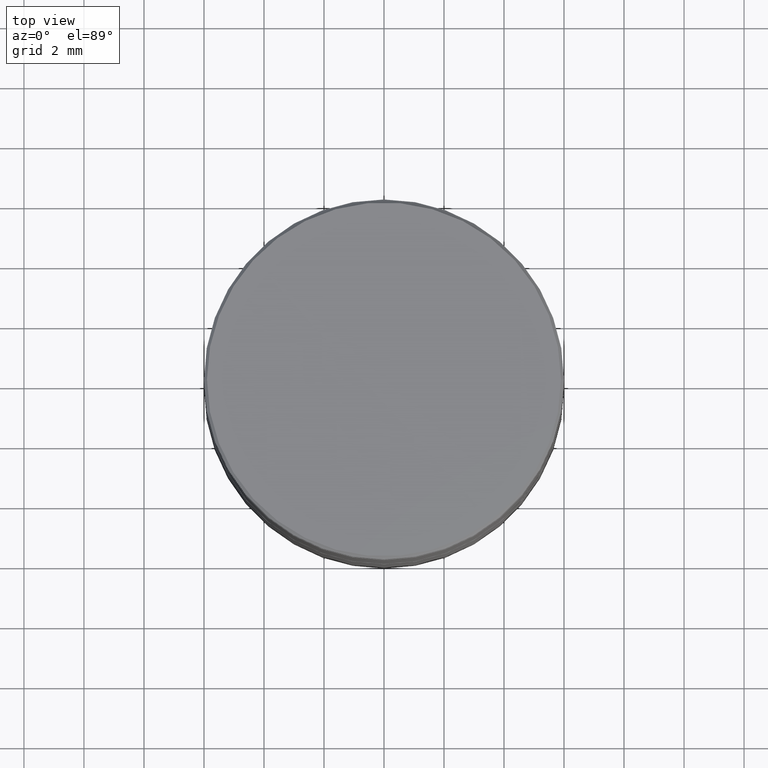
[diagram: clean part render]
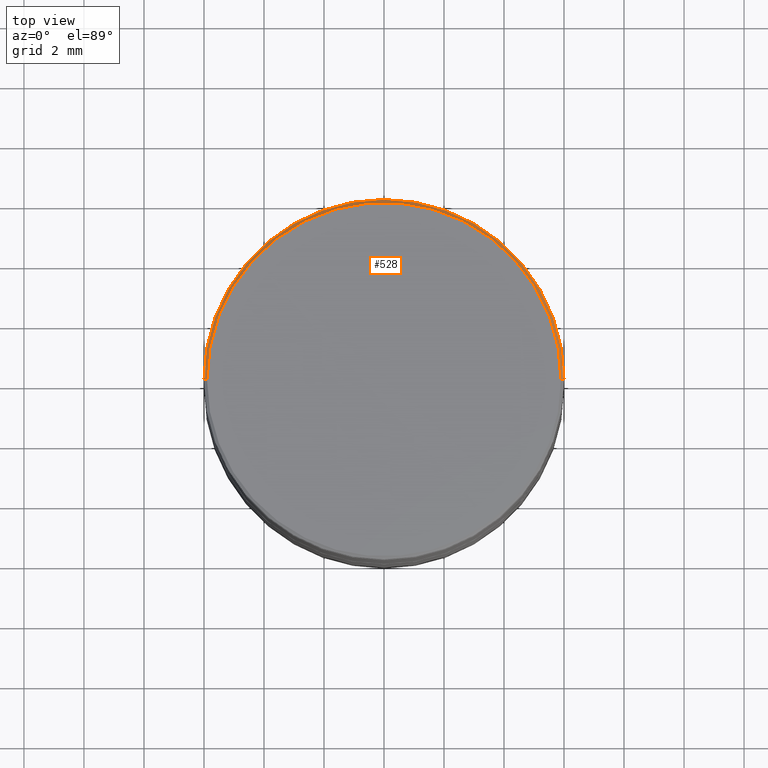
[diagram: same view with one face highlighted and labeled with its STEP entity id]
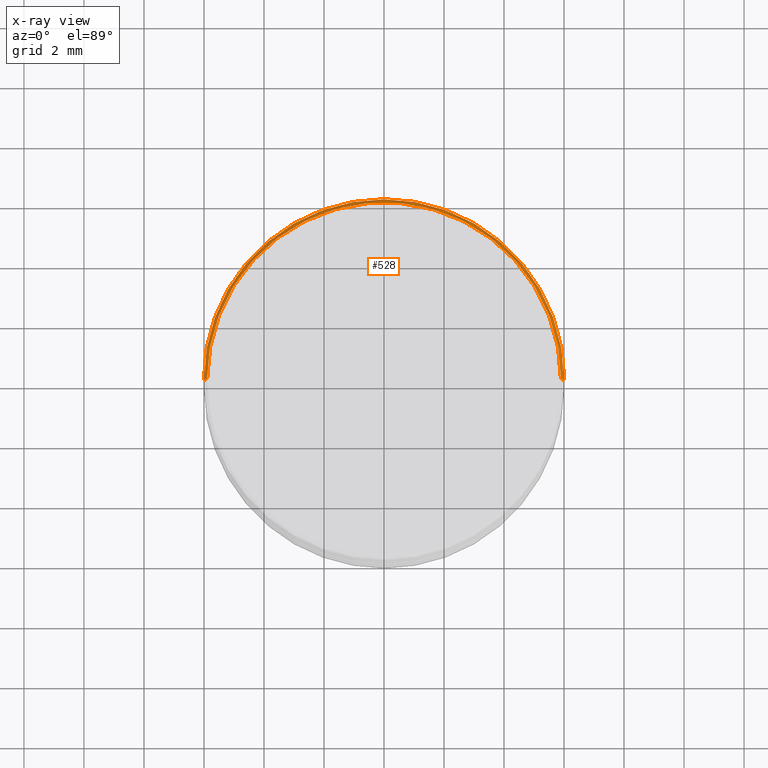
[diagram: x-ray of the same camera — body ghosted, the highlighted face saturated]
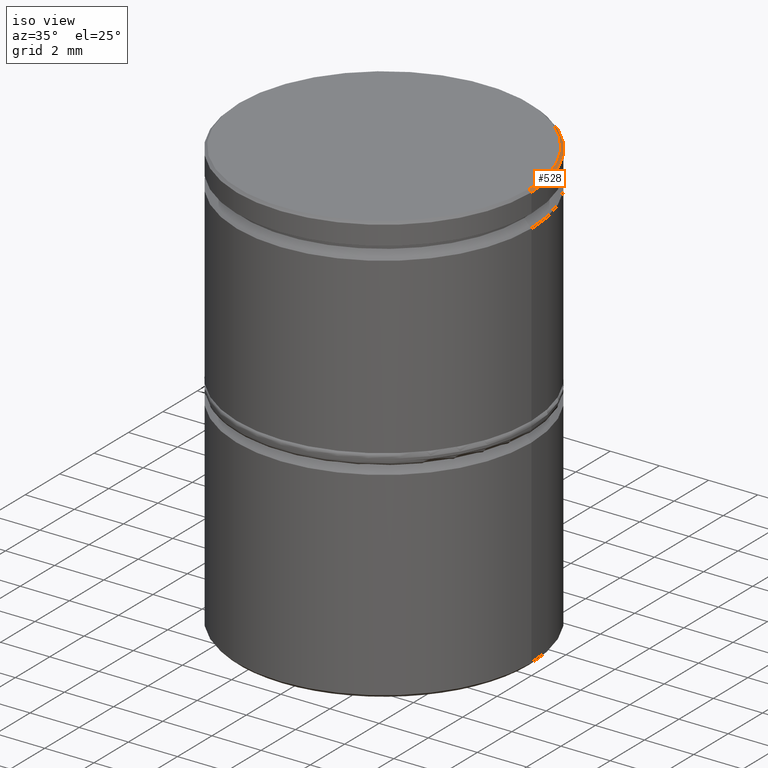
[diagram: same view with one face highlighted and labeled with its STEP entity id]
A machine part, top view. The second image highlights one B-rep face of the part: STEP entity #528.
The next image is the same camera in x-ray: the body ghosted, the highlighted face saturated — about 0% of this face is hidden behind the body in this view.
A second angle (iso view) of the same face is appended — the face is thin or edge-on in the first view.
In plain terms, the highlighted conical surface has half-angle 45 deg.
Its self-contained STEP definition (entity closure, byte-faithful):
#3 = DIRECTION ( 'NONE',  ( -0.7071067811865444641, 0.000000000000000000, -0.7071067811865505703 ) ) ;
#25 = ORIENTED_EDGE ( 'NONE', *, *, #942, .T. ) ;
#42 = EDGE_CURVE ( 'NONE', #913, #546, #564, .T. ) ;
#83 = CONICAL_SURFACE ( 'NONE', #1029, 5.900000000000002132, 0.7853981633974439491 ) ;
#90 = VERTEX_POINT ( 'NONE', #794 ) ;
#101 = DIRECTION ( 'NONE',  ( 0.7071067811865444641, 8.659560562354897113E-17, -0.7071067811865505703 ) ) ;
#138 = DIRECTION ( 'NONE',  ( -1.000000000000000000, 0.000000000000000000, 0.000000000000000000 ) ) ;
#204 = ORIENTED_EDGE ( 'NONE', *, *, #42, .F. ) ;
#236 = EDGE_CURVE ( 'NONE', #90, #679, #733, .T. ) ;
#250 = EDGE_LOOP ( 'NONE', ( #516, #25, #204, #921 ) ) ;
#274 = LINE ( 'NONE', #885, #1030 ) ;
#294 = AXIS2_PLACEMENT_3D ( 'NONE', #463, #689, #923 ) ;
#394 = CARTESIAN_POINT ( 'NONE',  ( 6.000000000000000000, 0.000000000000000000, -0.09999999999999852063 ) ) ;
#463 = CARTESIAN_POINT ( 'NONE',  ( 0.000000000000000000, 0.000000000000000000, -0.09999999999999852063 ) ) ;
#464 = FACE_OUTER_BOUND ( 'NONE', #250, .T. ) ;
#475 = DIRECTION ( 'NONE',  ( 1.000000000000000000, 0.000000000000000000, 0.000000000000000000 ) ) ;
#516 = ORIENTED_EDGE ( 'NONE', *, *, #236, .F. ) ;
#528 = ADVANCED_FACE ( 'NONE', ( #464 ), #83, .T. ) ;
#546 = VERTEX_POINT ( 'NONE', #394 ) ;
#564 = CIRCLE ( 'NONE', #294, 6.000000000000000000 ) ;
#624 = DIRECTION ( 'NONE',  ( 0.000000000000000000, 0.000000000000000000, -1.000000000000000000 ) ) ;
#679 = VERTEX_POINT ( 'NONE', #1024 ) ;
#685 = CARTESIAN_POINT ( 'NONE',  ( 0.000000000000000000, 0.000000000000000000, 0.000000000000000000 ) ) ;
#689 = DIRECTION ( 'NONE',  ( 0.000000000000000000, 0.000000000000000000, -1.000000000000000000 ) ) ;
#707 = CARTESIAN_POINT ( 'NONE',  ( -5.900000000000002132, 0.000000000000000000, 0.000000000000000000 ) ) ;
#719 = LINE ( 'NONE', #707, #812 ) ;
#733 = CIRCLE ( 'NONE', #946, 5.900000000000002132 ) ;
#735 = CARTESIAN_POINT ( 'NONE',  ( -6.000000000000000000, 7.347880794884119736E-16, -0.09999999999999852063 ) ) ;
#794 = CARTESIAN_POINT ( 'NONE',  ( 5.900000000000002132, 7.286648454926752951E-16, 0.000000000000000000 ) ) ;
#800 = EDGE_CURVE ( 'NONE', #679, #913, #719, .T. ) ;
#812 = VECTOR ( 'NONE', #3, 1000.000000000000000 ) ;
#885 = CARTESIAN_POINT ( 'NONE',  ( 5.900000000000002132, 7.225416114969386166E-16, 0.000000000000000000 ) ) ;
#913 = VERTEX_POINT ( 'NONE', #735 ) ;
#921 = ORIENTED_EDGE ( 'NONE', *, *, #800, .F. ) ;
#923 = DIRECTION ( 'NONE',  ( 1.000000000000000000, 0.000000000000000000, 0.000000000000000000 ) ) ;
#942 = EDGE_CURVE ( 'NONE', #90, #546, #274, .T. ) ;
#946 = AXIS2_PLACEMENT_3D ( 'NONE', #1013, #964, #475 ) ;
#964 = DIRECTION ( 'NONE',  ( -0.000000000000000000, -0.000000000000000000, 1.000000000000000000 ) ) ;
#1013 = CARTESIAN_POINT ( 'NONE',  ( 0.000000000000000000, 0.000000000000000000, 0.000000000000000000 ) ) ;
#1024 = CARTESIAN_POINT ( 'NONE',  ( -5.900000000000002132, 0.000000000000000000, 0.000000000000000000 ) ) ;
#1029 = AXIS2_PLACEMENT_3D ( 'NONE', #685, #624, #138 ) ;
#1030 = VECTOR ( 'NONE', #101, 1000.000000000000000 ) ;